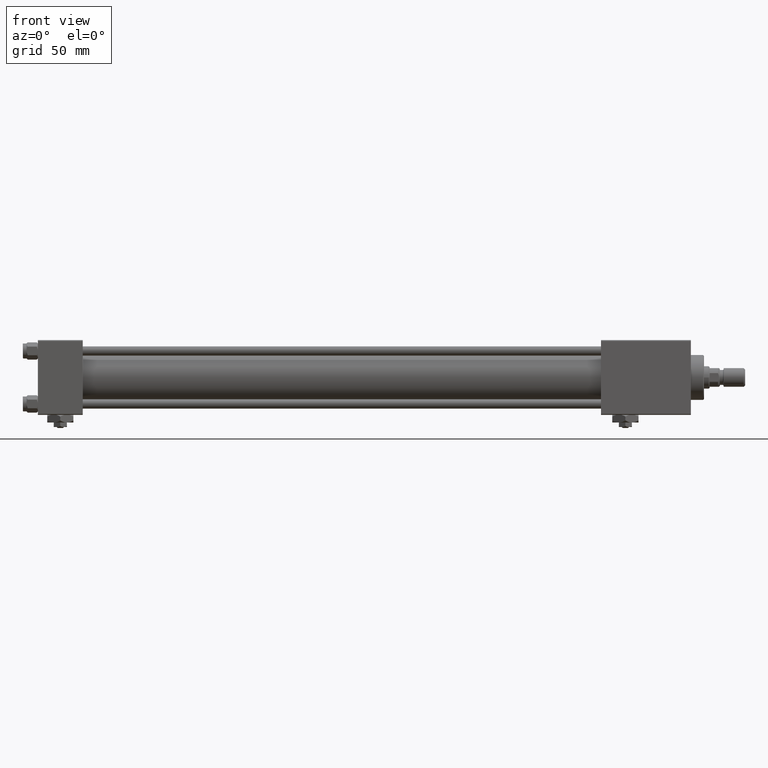
[diagram: clean part render]
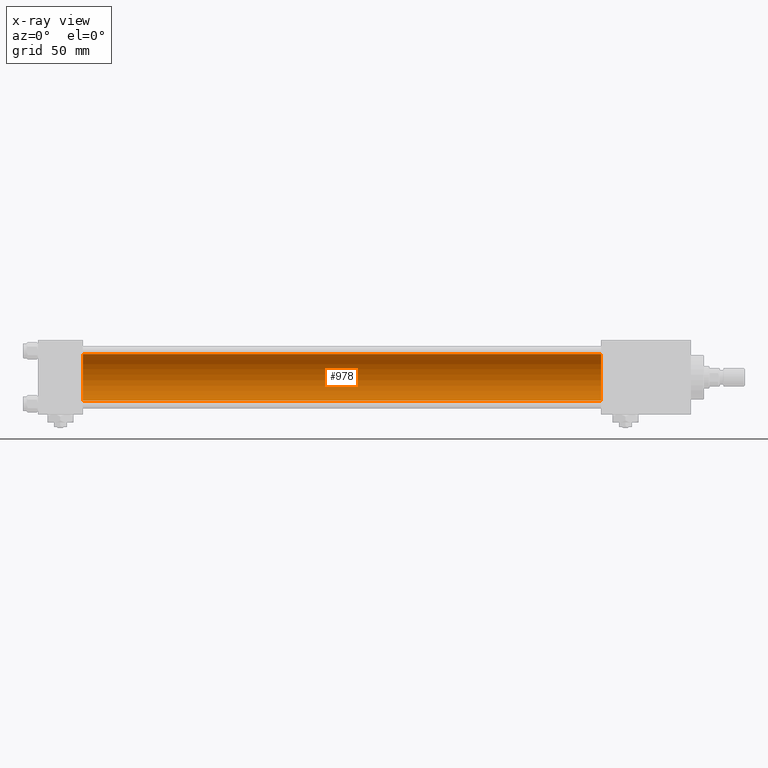
[diagram: x-ray — body ghosted, one internal face saturated and labeled with its STEP entity id]
A machine part, front view, then the same camera in x-ray: the body is ghosted and one INTERNAL B-rep face — a face not visible from any outside direction — is saturated and labeled: STEP entity #978.
In plain terms, the highlighted cylindrical surface (edge-blend (fillet) strip) has radius 12.5 mm, axis along (-1, -0, -0).
Its self-contained STEP definition (entity closure, byte-faithful):
#73 = DIRECTION ( 'NONE',  ( 1.000000000000000000, 0.000000000000000000, 0.000000000000000000 ) ) ;
#978 = ADVANCED_FACE ( 'NONE', ( #30123 ), #17363, .F. ) ;
#1732 = VERTEX_POINT ( 'NONE', #10074 ) ;
#3561 = AXIS2_PLACEMENT_3D ( 'NONE', #27843, #48080, #44595 ) ;
#4919 = EDGE_LOOP ( 'NONE', ( #46229, #38472, #14553, #31231 ) ) ;
#7094 = CARTESIAN_POINT ( 'NONE',  ( 301.0000000000000568, -2.602085213965210642E-15, 12.49999999999999645 ) ) ;
#8415 = EDGE_CURVE ( 'NONE', #51913, #34557, #12905, .T. ) ;
#8778 = EDGE_CURVE ( 'NONE', #1732, #51913, #9515, .T. ) ;
#9515 = CIRCLE ( 'NONE', #49420, 12.49999999999999645 ) ;
#9939 = DIRECTION ( 'NONE',  ( -1.000000000000000000, -0.000000000000000000, -0.000000000000000000 ) ) ;
#10074 = CARTESIAN_POINT ( 'NONE',  ( 301.0000000000000568, -1.071276715031019515E-15, -12.49999999999999645 ) ) ;
#10708 = CARTESIAN_POINT ( 'NONE',  ( 301.0000000000000568, -1.071276715031019515E-15, -12.49999999999999645 ) ) ;
#12905 = LINE ( 'NONE', #50134, #17961 ) ;
#14534 = VERTEX_POINT ( 'NONE', #28589 ) ;
#14553 = ORIENTED_EDGE ( 'NONE', *, *, #8415, .T. ) ;
#16262 = EDGE_CURVE ( 'NONE', #1732, #14534, #27698, .T. ) ;
#17363 = CYLINDRICAL_SURFACE ( 'NONE', #28020, 12.49999999999999645 ) ;
#17961 = VECTOR ( 'NONE', #25118, 1000.000000000000000 ) ;
#22654 = DIRECTION ( 'NONE',  ( -1.000000000000000000, -0.000000000000000000, -0.000000000000000000 ) ) ;
#25118 = DIRECTION ( 'NONE',  ( -1.000000000000000000, -0.000000000000000000, -0.000000000000000000 ) ) ;
#26477 = CIRCLE ( 'NONE', #3561, 12.49999999999999645 ) ;
#27698 = LINE ( 'NONE', #10708, #32682 ) ;
#27843 = CARTESIAN_POINT ( 'NONE',  ( 24.00000000000000000, -2.602085213965210642E-15, 0.000000000000000000 ) ) ;
#28020 = AXIS2_PLACEMENT_3D ( 'NONE', #33594, #9939, #49839 ) ;
#28589 = CARTESIAN_POINT ( 'NONE',  ( 24.00000000000000000, -1.071276715031019515E-15, -12.49999999999999645 ) ) ;
#30013 = EDGE_CURVE ( 'NONE', #14534, #34557, #26477, .T. ) ;
#30123 = FACE_OUTER_BOUND ( 'NONE', #4919, .T. ) ;
#31231 = ORIENTED_EDGE ( 'NONE', *, *, #30013, .F. ) ;
#32682 = VECTOR ( 'NONE', #22654, 1000.000000000000000 ) ;
#33594 = CARTESIAN_POINT ( 'NONE',  ( 301.0000000000000568, -2.602085213965210642E-15, 0.000000000000000000 ) ) ;
#34557 = VERTEX_POINT ( 'NONE', #50297 ) ;
#36756 = CARTESIAN_POINT ( 'NONE',  ( 301.0000000000000568, -2.602085213965210642E-15, 0.000000000000000000 ) ) ;
#38472 = ORIENTED_EDGE ( 'NONE', *, *, #8778, .T. ) ;
#41019 = DIRECTION ( 'NONE',  ( 0.000000000000000000, 0.000000000000000000, -1.000000000000000000 ) ) ;
#44595 = DIRECTION ( 'NONE',  ( 0.000000000000000000, 0.000000000000000000, -1.000000000000000000 ) ) ;
#46229 = ORIENTED_EDGE ( 'NONE', *, *, #16262, .F. ) ;
#48080 = DIRECTION ( 'NONE',  ( 1.000000000000000000, 0.000000000000000000, 0.000000000000000000 ) ) ;
#49420 = AXIS2_PLACEMENT_3D ( 'NONE', #36756, #73, #41019 ) ;
#49839 = DIRECTION ( 'NONE',  ( 0.000000000000000000, 0.000000000000000000, 1.000000000000000000 ) ) ;
#50134 = CARTESIAN_POINT ( 'NONE',  ( 301.0000000000000568, -2.602085213965210642E-15, 12.49999999999999645 ) ) ;
#50297 = CARTESIAN_POINT ( 'NONE',  ( 24.00000000000000000, -2.602085213965210642E-15, 12.49999999999999645 ) ) ;
#51913 = VERTEX_POINT ( 'NONE', #7094 ) ;